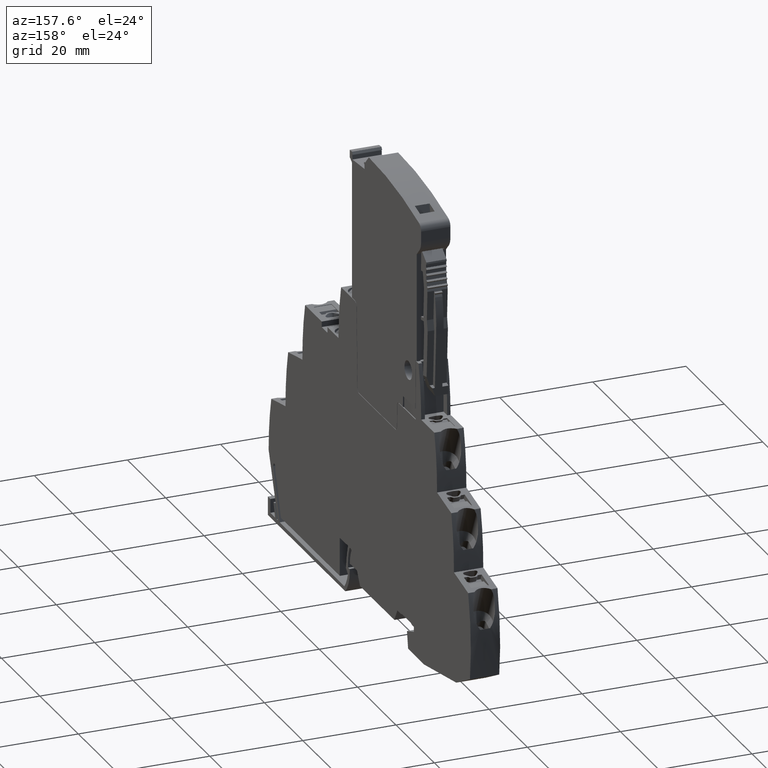
[diagram: clean part render]
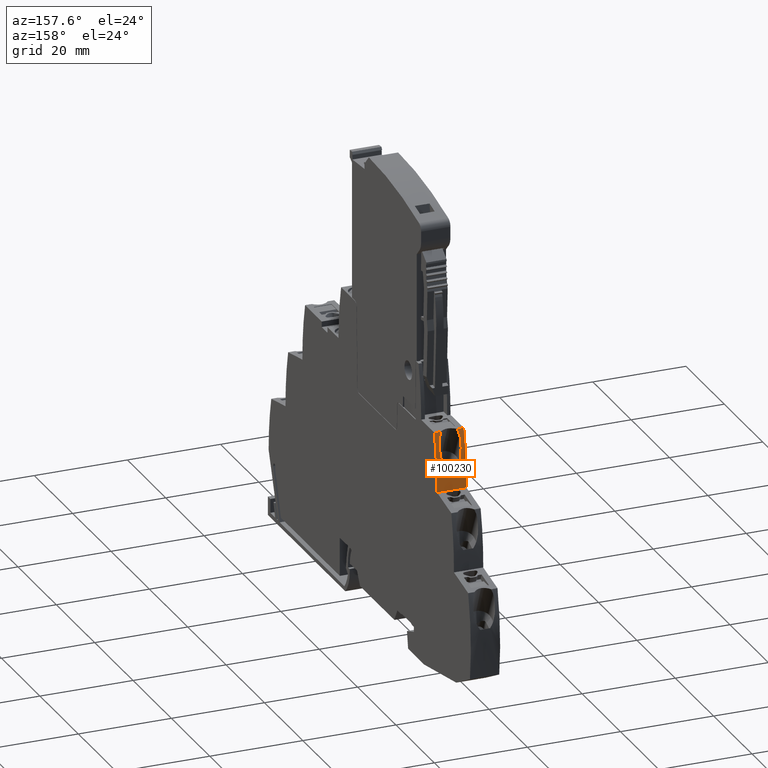
[diagram: same view with one face highlighted and labeled with its STEP entity id]
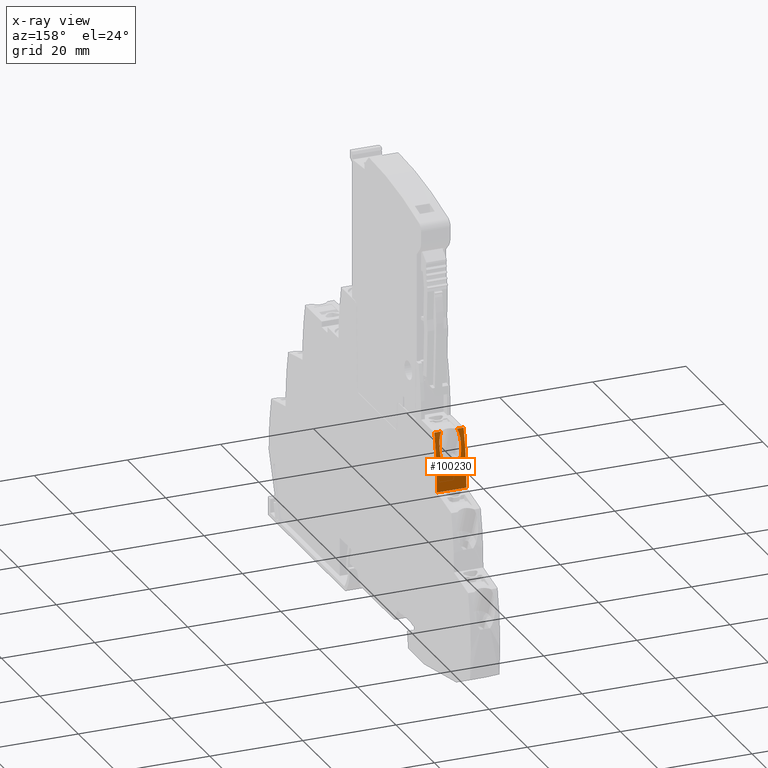
[diagram: x-ray of the same camera — body ghosted, the highlighted face saturated]
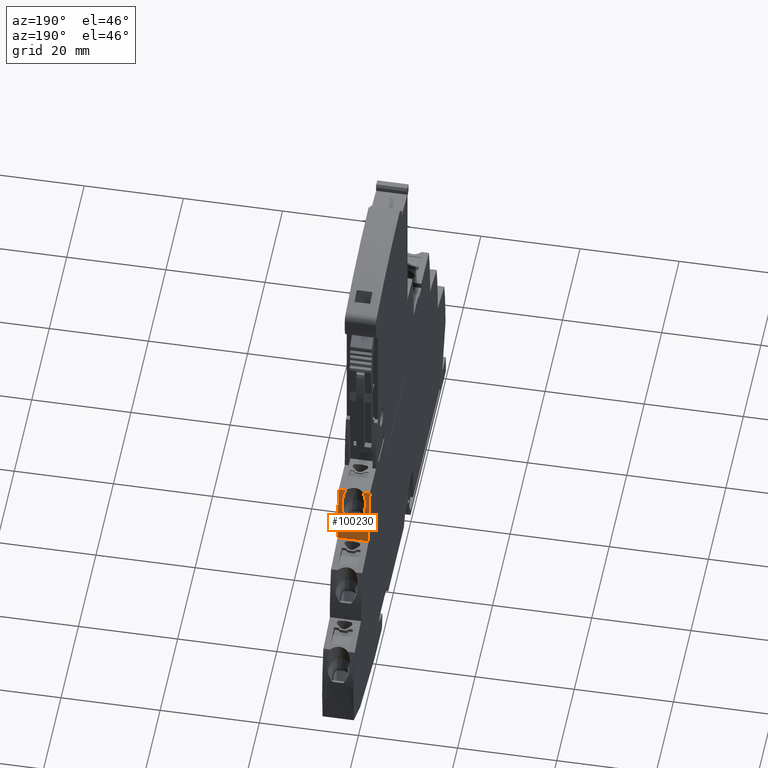
[diagram: same view with one face highlighted and labeled with its STEP entity id]
A machine part, auxiliary view. The second image highlights one B-rep face of the part: STEP entity #100230.
The next image is the same camera in x-ray: the body ghosted, the highlighted face saturated — about 0% of this face is hidden behind the body in this view.
A second angle (auxiliary view) of the same face is appended — the face is thin or edge-on in the first view.
In plain terms, the highlighted cylindrical surface (partial cylindrical patch) has radius 50 mm, axis along (1, -0, -0).
Its self-contained STEP definition (entity closure, byte-faithful):
#18140=CARTESIAN_POINT('',(12.092036618478,34.1702546828144,
3.77076792671845E-8));
#18150=VERTEX_POINT('',#18140);
#18180=CARTESIAN_POINT('',(-37.9036280791465,34.828670541299,
3.84342564829878E-8));
#18190=DIRECTION('',(4.25831762501444E-18,1.10352358519E-9,-1.));
#18200=DIRECTION('',(0.973730485764538,0.227703625559095,
2.51276325384187E-10));
#18210=AXIS2_PLACEMENT_3D('',#18180,#18190,#18200);
#18220=CIRCLE('',#18210,50.);
#18230=CARTESIAN_POINT('',(10.6909786444634,46.6000000064736,
5.14241963837814E-8));
#18240=VERTEX_POINT('',#18230);
#18250=EDGE_CURVE('',#18240,#18150,#18220,.T.);
#30710=CARTESIAN_POINT('',(10.6909786444634,46.5999999995214,
6.3000000582273));
#30720=VERTEX_POINT('',#30710);
#30750=CARTESIAN_POINT('',(-37.9036280791465,34.8286705343468,
6.29999999639871));
#30760=DIRECTION('',(-9.03369185025767E-18,-1.10352358515064E-9,1.));
#30770=DIRECTION('',(0.999966040915724,-0.00824117803062549,
-9.09432529283549E-12));
#30780=AXIS2_PLACEMENT_3D('',#30750,#30760,#30770);
#30790=CIRCLE('',#30780,50.);
#30800=CARTESIAN_POINT('',(12.092036618478,34.1702546758623,
6.29999999567213));
#30810=VERTEX_POINT('',#30800);
#30820=EDGE_CURVE('',#30810,#30720,#30790,.T.);
#70930=CARTESIAN_POINT('',(10.6909786444634,46.6000000048834,
1.44103923717334));
#70940=VERTEX_POINT('',#70930);
#71040=CARTESIAN_POINT('',(10.6909786444634,46.6000000011116,
4.85896089886493));
#71050=VERTEX_POINT('',#71040);
#71080=CARTESIAN_POINT('',(10.6909786444634,46.6000000064736,
5.14241963837812E-8));
#71090=DIRECTION('',(-4.25831752161686E-18,-1.10352358519E-9,1.));
#71100=VECTOR('',#71090,1.);
#71110=LINE('',#71080,#71100);
#71120=EDGE_CURVE('',#71050,#30720,#71110,.T.);
#71400=CARTESIAN_POINT('',(10.6909786444634,46.6000000064736,
5.14241963837812E-8));
#71410=DIRECTION('',(-4.25831752161686E-18,-1.10352358519E-9,1.));
#71420=VECTOR('',#71410,1.);
#71430=LINE('',#71400,#71420);
#71440=EDGE_CURVE('',#18240,#70940,#71430,.T.);
#98510=CARTESIAN_POINT('',(9.75740023012129,40.364009137963,
3.25000005902521));
#98520=DIRECTION('',(0.390731082790663,0.920504872850349,
6.01727697571383E-10));
#98530=DIRECTION('',(-0.920504872850349,0.390731082790663,
1.84207079026413E-11));
#98540=AXIS2_PLACEMENT_3D('',#98510,#98520,#98530);
#98550=CYLINDRICAL_SURFACE('',#98540,2.4);
#98560=CARTESIAN_POINT('',(-37.9036280791465,34.828670541299,
3.84342564829878E-8));
#98570=DIRECTION('',(-4.25831752161686E-18,-1.10352358519E-9,1.));
#98580=DIRECTION('',(1.,0.,4.25831752161686E-18));
#98590=AXIS2_PLACEMENT_3D('',#98560,#98570,#98580);
#98600=CYLINDRICAL_SURFACE('',#98590,50.);
#98610=CARTESIAN_POINT('',(10.6909786444634,46.6000000048834,
1.44103923717333));
#98620=CARTESIAN_POINT('',(10.740573445226,46.3952618872136,
1.3314852412124));
#98630=CARTESIAN_POINT('',(10.7906263983674,46.1829563507231,
1.24158498756516));
#98640=CARTESIAN_POINT('',(10.8405393518928,45.9644750217186,
1.16650677895663));
#98650=CARTESIAN_POINT('',(10.8904542226163,45.7459853006645,
1.09142568653163));
#98660=CARTESIAN_POINT('',(10.9401737157989,45.52151972202,
1.03150702038191));
#98670=CARTESIAN_POINT('',(10.9888123700658,45.2942936425521,
0.984758735378257));
#98680=CARTESIAN_POINT('',(11.0374621203412,45.067015725661,
0.937999785618887));
#98690=CARTESIAN_POINT('',(11.0850089878053,44.8370874545964,
0.904460009988024));
#98700=CARTESIAN_POINT('',(11.1308619783096,44.6071563538487,
0.8825037735669));
#98710=CARTESIAN_POINT('',(11.1767770897089,44.3769137461386,
0.860517791189316));
#98720=CARTESIAN_POINT('',(11.2212617844656,44.1453633472912,
0.850000059933108));
#98730=CARTESIAN_POINT('',(11.2640935180157,43.9135565024381,
0.850000061345525));
#98740=B_SPLINE_CURVE_WITH_KNOTS('',3,(#98610,#98620,#98630,#98640,
#98650,#98660,#98670,#98680,#98690,#98700,#98710,#98720,#98730),
.UNSPECIFIED.,.F.,.F.,(4,3,3,3,4),(0.,0.708983118359656,1.4194912601635,
2.1289018924001,2.83619217356492),.UNSPECIFIED.);
#98750=SURFACE_CURVE('',#98740,(#98600,#98550),.CURVE_3D.);
#98760=CARTESIAN_POINT('',(11.2640935180567,43.9135565024457,
0.850000061345417));
#98770=VERTEX_POINT('',#98760);
#98780=EDGE_CURVE('',#70940,#98770,#98750,.T.);
#99140=ORIENTED_EDGE('',*,*,#71440,.T.);
#99150=ORIENTED_EDGE('',*,*,#18250,.F.);
#99160=CARTESIAN_POINT('',(12.092036618478,34.1702546828145,
3.77076792671844E-8));
#99170=DIRECTION('',(-4.25831752161686E-18,-1.10352358519E-9,1.));
#99180=VECTOR('',#99170,1.);
#99190=LINE('',#99160,#99180);
#99200=EDGE_CURVE('',#18150,#30810,#99190,.T.);
#99210=ORIENTED_EDGE('',*,*,#99200,.F.);
#99220=ORIENTED_EDGE('',*,*,#30820,.F.);
#99230=ORIENTED_EDGE('',*,*,#71120,.T.);
#99240=CARTESIAN_POINT('',(9.75740023016476,40.364009138075,
3.05000006840111));
#99250=DIRECTION('',(0.390731082790663,0.920504872850349,
5.97847550714147E-10));
#99260=DIRECTION('',(-0.920504872850349,0.390731082790663,
1.79100721330412E-11));
#99270=AXIS2_PLACEMENT_3D('',#99240,#99250,#99260);
#99280=CYLINDRICAL_SURFACE('',#99270,2.4);
#99290=CARTESIAN_POINT('',(11.264093483392,43.9135566849733,
5.45000007070704));
#99300=CARTESIAN_POINT('',(11.2212006857801,44.145694005714,
5.45000006676211));
#99310=CARTESIAN_POINT('',(11.1766477362026,44.3775860698491,
5.4394507514067));
#99320=CARTESIAN_POINT('',(11.1306689092967,44.6081244489682,
5.41740384653261));
#99330=CARTESIAN_POINT('',(11.0847126564996,44.8385496412402,
5.39536776597185));
#99340=CARTESIAN_POINT('',(11.0372228864348,45.0681410805289,
5.36178259293336));
#99350=CARTESIAN_POINT('',(10.9887392417667,45.2946352667377,
5.31517110340596));
#99360=CARTESIAN_POINT('',(10.9402969793478,45.5209361333453,
5.268599398187));
#99370=CARTESIAN_POINT('',(10.8907510185408,45.7446728718975,
5.20899153342655));
#99380=CARTESIAN_POINT('',(10.84068558798,45.9638348864992,
5.13371327915122));
#99390=CARTESIAN_POINT('',(10.790664095853,46.1828045600875,
5.05850109059325));
#99400=CARTESIAN_POINT('',(10.7402907315355,46.396428986769,
4.9678903852224));
#99410=CARTESIAN_POINT('',(10.6909786444637,46.6000000011118,
4.85896089886554));
#99420=B_SPLINE_CURVE_WITH_KNOTS('',3,(#99290,#99300,#99310,#99320,
#99330,#99340,#99350,#99360,#99370,#99380,#99390,#99400,#99410),
.UNSPECIFIED.,.F.,.F.,(4,3,3,3,4),(0.,0.708281583625777,1.41705709328264
,2.12651638357472,2.83619198568473),.UNSPECIFIED.);
#99430=SURFACE_CURVE('',#99420,(#99280,#98600),.CURVE_3D.);
#99440=CARTESIAN_POINT('',(11.2640934833515,43.9135566849658,
5.45000005534321));
#99450=VERTEX_POINT('',#99440);
#99460=EDGE_CURVE('',#99450,#71050,#99430,.T.);
#99470=ORIENTED_EDGE('',*,*,#99460,.T.);
#99480=CARTESIAN_POINT('',(-37.9036280791465,34.8286705352848,
5.45000004531782));
#99490=DIRECTION('',(-2.46571593383638E-18,1.10352358394758E-9,-1.));
#99500=DIRECTION('',(0.983354431744245,0.181697720318536,
2.00507717096343E-10));
#99510=AXIS2_PLACEMENT_3D('',#99480,#99490,#99500);
#99520=CIRCLE('',#99510,50.);
#99530=CARTESIAN_POINT('',(11.453101269225,42.8232479494828,
5.45000006047614));
#99540=VERTEX_POINT('',#99530);
#99550=EDGE_CURVE('',#99450,#99540,#99520,.T.);
#99560=ORIENTED_EDGE('',*,*,#99550,.F.);
#99570=CARTESIAN_POINT('',(11.2796024718165,42.4145104108153,
3.05000006020537));
#99580=DIRECTION('',(-0.390731082786406,-0.920504872852155,
-5.97773776464338E-10));
#99590=DIRECTION('',(0.920504872852155,-0.390731082786406,
-1.12247074504474E-11));
#99600=AXIS2_PLACEMENT_3D('',#99570,#99580,#99590);
#99610=CYLINDRICAL_SURFACE('',#99600,2.40000000000534);
#99620=CARTESIAN_POINT('',(11.9525179578254,38.6187500001167,
4.20728592698408));
#99630=CARTESIAN_POINT('',(11.9307563667494,38.9050102413973,
4.4468883884073));
#99640=CARTESIAN_POINT('',(11.9028144938936,39.2369312618262,
4.63566965093021));
#99650=CARTESIAN_POINT('',(11.870703959315,39.5737595892434,
4.78896945951368));
#99660=CARTESIAN_POINT('',(11.8383351163104,39.9132974821123,
4.94350246563809));
#99670=CARTESIAN_POINT('',(11.8010211799029,40.267242657386,
5.06531511506673));
#99680=CARTESIAN_POINT('',(11.7591822719959,40.6256756267219,
5.16174520304696));
#99690=CARTESIAN_POINT('',(11.7172587799117,40.9848332267741,
5.25837024018004));
#99700=CARTESIAN_POINT('',(11.6706587082461,41.3499858510547,
5.32959409528944));
#99710=CARTESIAN_POINT('',(11.6195786226061,41.7172115982813,
5.3775094127658));
#99720=CARTESIAN_POINT('',(11.568473827838,42.0846149847565,
5.42544790846715));
#99730=CARTESIAN_POINT('',(11.512865316974,42.4542781119689,
5.45000005801396));
#99740=CARTESIAN_POINT('',(11.453101269225,42.8232479494828,
5.45000006047614));
#99750=B_SPLINE_CURVE_WITH_KNOTS('',3,(#99620,#99630,#99640,#99650,
#99660,#99670,#99680,#99690,#99700,#99710,#99720,#99730,#99740),
.UNSPECIFIED.,.F.,.F.,(4,3,3,3,4),(0.,1.12462851763072,2.24748247072451,
3.3697066029544,4.49134331575522),.UNSPECIFIED.);
#99760=SURFACE_CURVE('',#99750,(#99610,#98600),.CURVE_3D.);
#99770=CARTESIAN_POINT('',(11.9525179577602,38.6187500010781,
4.20728592836448));
#99780=VERTEX_POINT('',#99770);
#99790=EDGE_CURVE('',#99780,#99540,#99760,.T.);
#99800=ORIENTED_EDGE('',*,*,#99790,.T.);
#99810=CARTESIAN_POINT('',(11.9525179579208,38.6187500036084,
4.26166987716938E-8));
#99820=DIRECTION('',(-4.25831752161686E-18,-1.10352358519E-9,1.));
#99830=VECTOR('',#99820,1.);
#99840=LINE('',#99810,#99830);
#99850=CARTESIAN_POINT('',(11.9525179578091,38.618750002753,
2.09271418798615));
#99860=VERTEX_POINT('',#99850);
#99870=EDGE_CURVE('',#99860,#99780,#99840,.T.);
#99880=ORIENTED_EDGE('',*,*,#99870,.T.);
#99890=CARTESIAN_POINT('',(11.279602471773,42.4145104107034,
3.25000006052727));
#99900=DIRECTION('',(-0.390731082786406,-0.920504872852155,
-6.01801542064215E-10));
#99910=DIRECTION('',(0.920504872852155,-0.390731082786406,
-2.51059722625071E-11));
#99920=AXIS2_PLACEMENT_3D('',#99890,#99900,#99910);
#99930=CYLINDRICAL_SURFACE('',#99920,2.40000000000534);
#99940=CARTESIAN_POINT('',(11.4531012542525,42.8232480469955,
0.850000060789152));
#99950=CARTESIAN_POINT('',(11.5128653055248,42.4542781921076,
0.850000058565698));
#99960=CARTESIAN_POINT('',(11.5684738198268,42.0846150449112,
0.874552206481631));
#99970=CARTESIAN_POINT('',(11.6195786163091,41.7172116484681,
0.922490700965292));
#99980=CARTESIAN_POINT('',(11.6706587028421,41.3499858971759,
0.970406016455044));
#99990=CARTESIAN_POINT('',(11.7172587795534,40.9848332345344,
1.04162987751971));
#100000=CARTESIAN_POINT('',(11.7591822720645,40.6256756305747,
1.13825491515434));
#100010=CARTESIAN_POINT('',(11.8010211792588,40.2672426670946,
1.23468500101058));
#100020=CARTESIAN_POINT('',(11.8383351221423,39.9132974271872,
1.35649767566051));
#100030=CARTESIAN_POINT('',(11.8707039623406,39.573759561124,
1.51103067145554));
#100040=CARTESIAN_POINT('',(11.9028144960198,39.2369312405287,
1.66433047878989));
#100050=CARTESIAN_POINT('',(11.9307563754366,38.9050101300283,
1.85311182265214));
#100060=CARTESIAN_POINT('',(11.9525179578697,38.6187500018677,
2.09271418869704));
#100070=B_SPLINE_CURVE_WITH_KNOTS('',3,(#99940,#99950,#99960,#99970,
#99980,#99990,#100000,#100010,#100020,#100030,#100040,#100050,#100060),
.UNSPECIFIED.,.F.,.F.,(4,3,3,3,4),(0.,1.12163676040899,2.24386093949486,
3.36671492724548,4.4913434110289),.UNSPECIFIED.);
#100080=SURFACE_CURVE('',#100070,(#99930,#98600),.CURVE_3D.);
#100090=CARTESIAN_POINT('',(11.4531012542525,42.8232480469955,
0.850000060789152));
#100100=VERTEX_POINT('',#100090);
#100110=EDGE_CURVE('',#100100,#99860,#100080,.T.);
#100120=ORIENTED_EDGE('',*,*,#100110,.T.);
#100130=CARTESIAN_POINT('',(-37.9036280791465,34.828670540361,
0.850000045522858));
#100140=DIRECTION('',(-3.81593791790348E-18,-1.10352358511835E-9,1.));
#100150=DIRECTION('',(0.987134586824762,0.159891549164757,
1.76444099331263E-10));
#100160=AXIS2_PLACEMENT_3D('',#100130,#100140,#100150);
#100170=CIRCLE('',#100160,50.);
#100180=EDGE_CURVE('',#100100,#98770,#100170,.T.);
#100190=ORIENTED_EDGE('',*,*,#100180,.F.);
#100200=ORIENTED_EDGE('',*,*,#98780,.T.);
#100210=EDGE_LOOP('',(#100200,#100190,#100120,#99880,#99800,#99560,
#99470,#99230,#99220,#99210,#99150,#99140));
#100220=FACE_OUTER_BOUND('',#100210,.T.);
#100230=ADVANCED_FACE('',(#100220),#98600,.T.);